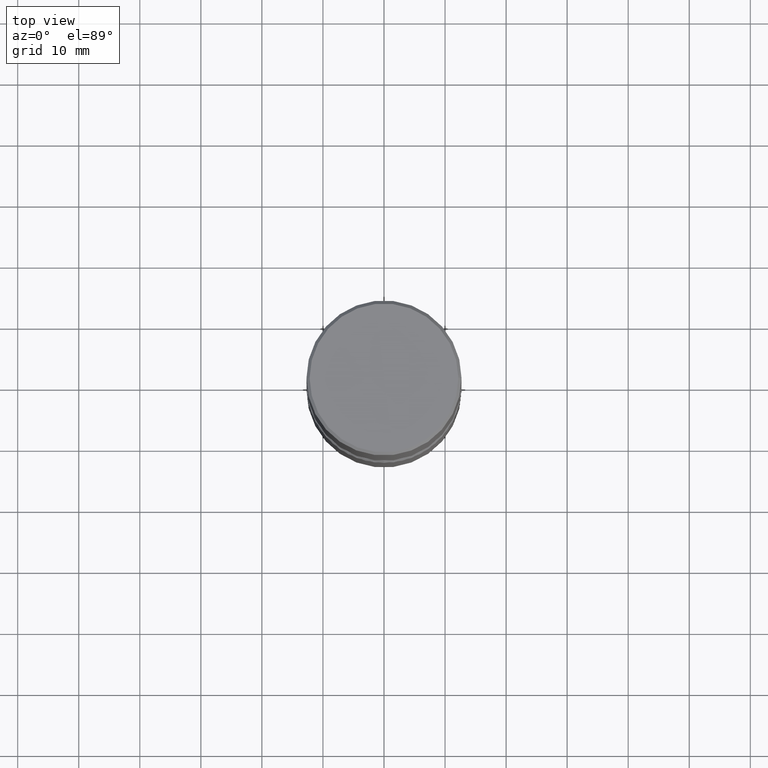
[diagram: clean part render]
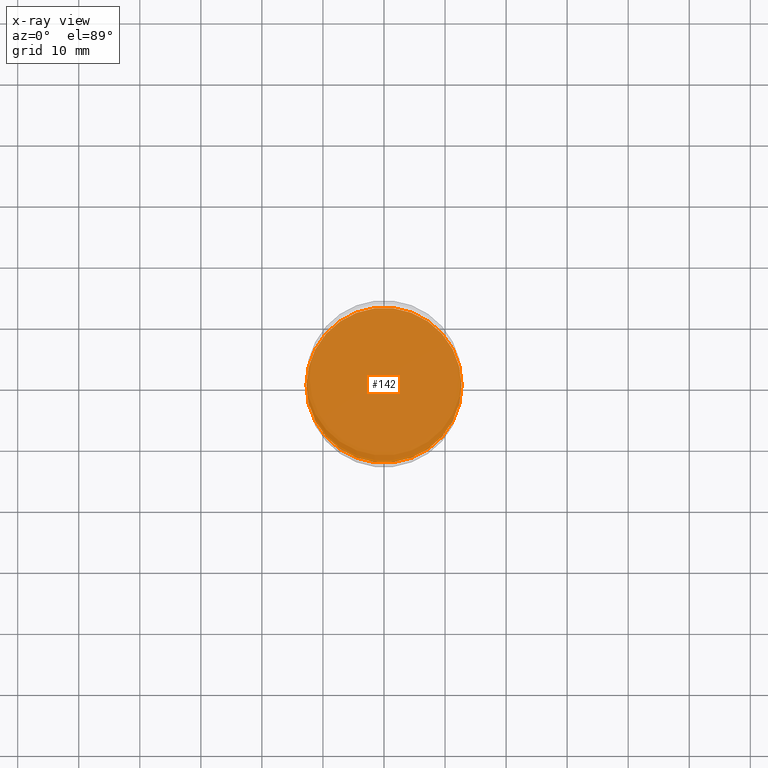
[diagram: x-ray — body ghosted, one internal face saturated and labeled with its STEP entity id]
A machine part, top view, then the same camera in x-ray: the body is ghosted and one INTERNAL B-rep face — a face not visible from any outside direction — is saturated and labeled: STEP entity #142.
In plain terms, the highlighted planar face has unit normal (0, -0, -1).
Its self-contained STEP definition (entity closure, byte-faithful):
#40 = AXIS2_PLACEMENT_3D ( 'NONE', #202, #374, #330 ) ;
#94 = DIRECTION ( 'NONE',  ( 2.438088387897960049E-29, -3.491481338843145188E-15, -1.000000000000000000 ) ) ;
#102 = CARTESIAN_POINT ( 'NONE',  ( -0.5000000000000005551, -9.051533954423258130E-15, -2.750000000000002220 ) ) ;
#108 = CIRCLE ( 'NONE', #40, 0.5000000000000004441 ) ;
#126 = AXIS2_PLACEMENT_3D ( 'NONE', #194, #316, #236 ) ;
#142 = ADVANCED_FACE ( 'NONE', ( #260 ), #436, .F. ) ;
#194 = CARTESIAN_POINT ( 'NONE',  ( 6.725039217009130125E-29, -9.601573681818657748E-15, -2.750000000000002220 ) ) ;
#202 = CARTESIAN_POINT ( 'NONE',  ( 6.725039217009130125E-29, -9.601573681818657748E-15, -2.750000000000002220 ) ) ;
#233 = ORIENTED_EDGE ( 'NONE', *, *, #310, .T. ) ;
#236 = DIRECTION ( 'NONE',  ( 1.000000000000000000, -6.982962677686268288E-15, 0.000000000000000000 ) ) ;
#251 = ORIENTED_EDGE ( 'NONE', *, *, #557, .T. ) ;
#260 = FACE_OUTER_BOUND ( 'NONE', #370, .T. ) ;
#265 = DIRECTION ( 'NONE',  ( -1.000000000000000000, 6.982962677686265922E-15, -4.876176775795935793E-29 ) ) ;
#286 = AXIS2_PLACEMENT_3D ( 'NONE', #470, #94, #265 ) ;
#310 = EDGE_CURVE ( 'NONE', #552, #322, #369, .T. ) ;
#316 = DIRECTION ( 'NONE',  ( -2.445468806185136597E-29, 3.491481338843145583E-15, 1.000000000000000000 ) ) ;
#322 = VERTEX_POINT ( 'NONE', #102 ) ;
#330 = DIRECTION ( 'NONE',  ( 1.000000000000000000, -6.982962677686268288E-15, 0.000000000000000000 ) ) ;
#369 = CIRCLE ( 'NONE', #126, 0.5000000000000004441 ) ;
#370 = EDGE_LOOP ( 'NONE', ( #233, #251 ) ) ;
#374 = DIRECTION ( 'NONE',  ( -2.445468806185136597E-29, 3.491481338843145583E-15, 1.000000000000000000 ) ) ;
#436 = PLANE ( 'NONE',  #286 ) ;
#470 = CARTESIAN_POINT ( 'NONE',  ( 4.626636033113468420E-29, -1.260660647484934709E-14, -2.750000000000002220 ) ) ;
#547 = CARTESIAN_POINT ( 'NONE',  ( 0.5000000000000004441, -1.309305502066179584E-14, -2.750000000000002220 ) ) ;
#552 = VERTEX_POINT ( 'NONE', #547 ) ;
#557 = EDGE_CURVE ( 'NONE', #322, #552, #108, .T. ) ;